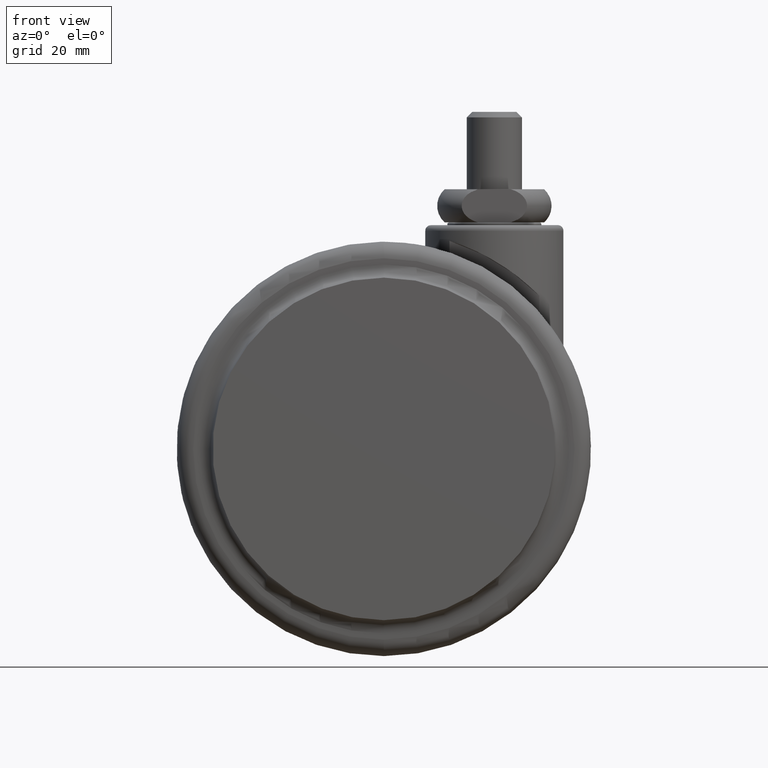
[diagram: clean part render]
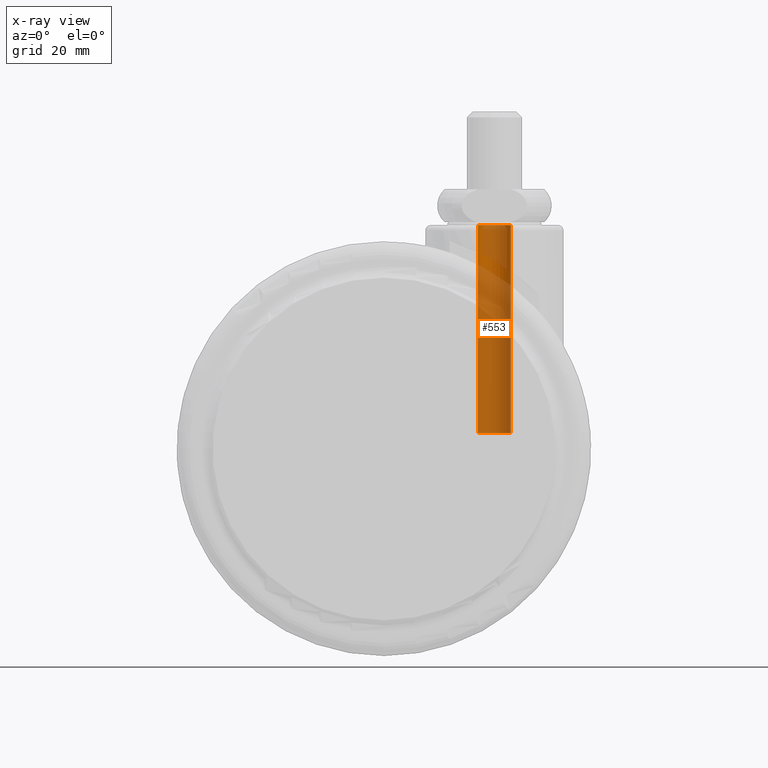
[diagram: x-ray — body ghosted, one internal face saturated and labeled with its STEP entity id]
A machine part, front view, then the same camera in x-ray: the body is ghosted and one INTERNAL B-rep face — a face not visible from any outside direction — is saturated and labeled: STEP entity #553.
In plain terms, the highlighted cylindrical surface (edge-blend (fillet) strip) has radius 3 mm, axis along (0, 0, 1).
Its self-contained STEP definition (entity closure, byte-faithful):
#128 = ORIENTED_EDGE ( 'NONE', *, *, #2611, .F. ) ;
#327 = DIRECTION ( 'NONE',  ( 0.0000000000000000000, 0.0000000000000000000, 1.000000000000000000 ) ) ;
#377 = CIRCLE ( 'NONE', #3787, 3.000000000000000000 ) ;
#475 = CARTESIAN_POINT ( 'NONE',  ( 0.0000000000000000000, 2.842170943040399500E-014, -37.61339081420354800 ) ) ;
#506 = EDGE_LOOP ( 'NONE', ( #3378, #128, #2441, #847 ) ) ;
#537 = CARTESIAN_POINT ( 'NONE',  ( 0.0000000000000000000, 2.842170943040399500E-014, 0.0000000000000000000 ) ) ;
#553 = ADVANCED_FACE ( 'NONE', ( #2684 ), #1775, .F. ) ;
#616 = CARTESIAN_POINT ( 'NONE',  ( 3.000000000000000000, 2.842170943040399500E-014, -37.61339081420354800 ) ) ;
#786 = DIRECTION ( 'NONE',  ( -1.000000000000000000, 0.0000000000000000000, 0.0000000000000000000 ) ) ;
#817 = AXIS2_PLACEMENT_3D ( 'NONE', #3780, #3185, #1951 ) ;
#847 = ORIENTED_EDGE ( 'NONE', *, *, #3469, .T. ) ;
#851 = DIRECTION ( 'NONE',  ( -1.000000000000000000, 0.0000000000000000000, 0.0000000000000000000 ) ) ;
#1083 = VERTEX_POINT ( 'NONE', #1563 ) ;
#1240 = CARTESIAN_POINT ( 'NONE',  ( 3.000000000000000000, 2.842170943040399500E-014, -1000.000000000000000 ) ) ;
#1462 = VECTOR ( 'NONE', #1978, 1000.000000000000000 ) ;
#1479 = CIRCLE ( 'NONE', #2494, 3.000000000000000000 ) ;
#1492 = VERTEX_POINT ( 'NONE', #2711 ) ;
#1563 = CARTESIAN_POINT ( 'NONE',  ( -3.000000000000000000, 2.878910347014820000E-014, 0.0000000000000000000 ) ) ;
#1638 = CARTESIAN_POINT ( 'NONE',  ( -3.000000000000000000, 2.878910347014820000E-014, -37.61339081420354800 ) ) ;
#1775 = CYLINDRICAL_SURFACE ( 'NONE', #817, 3.000000000000000000 ) ;
#1817 = VECTOR ( 'NONE', #327, 1000.000000000000000 ) ;
#1951 = DIRECTION ( 'NONE',  ( 1.000000000000000000, 0.0000000000000000000, 0.0000000000000000000 ) ) ;
#1978 = DIRECTION ( 'NONE',  ( 0.0000000000000000000, 0.0000000000000000000, 1.000000000000000000 ) ) ;
#1982 = VERTEX_POINT ( 'NONE', #1638 ) ;
#2039 = EDGE_CURVE ( 'NONE', #1982, #1083, #2292, .T. ) ;
#2182 = VERTEX_POINT ( 'NONE', #616 ) ;
#2292 = LINE ( 'NONE', #3807, #1462 ) ;
#2441 = ORIENTED_EDGE ( 'NONE', *, *, #3609, .T. ) ;
#2494 = AXIS2_PLACEMENT_3D ( 'NONE', #537, #2662, #851 ) ;
#2598 = DIRECTION ( 'NONE',  ( -0.0000000000000000000, -0.0000000000000000000, 1.000000000000000000 ) ) ;
#2611 = EDGE_CURVE ( 'NONE', #2182, #1982, #377, .T. ) ;
#2662 = DIRECTION ( 'NONE',  ( -0.0000000000000000000, -0.0000000000000000000, 1.000000000000000000 ) ) ;
#2684 = FACE_OUTER_BOUND ( 'NONE', #506, .T. ) ;
#2711 = CARTESIAN_POINT ( 'NONE',  ( 3.000000000000000000, 2.842170943040399500E-014, 0.0000000000000000000 ) ) ;
#3185 = DIRECTION ( 'NONE',  ( 0.0000000000000000000, 0.0000000000000000000, 1.000000000000000000 ) ) ;
#3378 = ORIENTED_EDGE ( 'NONE', *, *, #2039, .F. ) ;
#3460 = LINE ( 'NONE', #1240, #1817 ) ;
#3469 = EDGE_CURVE ( 'NONE', #1492, #1083, #1479, .T. ) ;
#3609 = EDGE_CURVE ( 'NONE', #2182, #1492, #3460, .T. ) ;
#3780 = CARTESIAN_POINT ( 'NONE',  ( 0.0000000000000000000, 2.842170943040399500E-014, -1000.000000000000000 ) ) ;
#3787 = AXIS2_PLACEMENT_3D ( 'NONE', #475, #2598, #786 ) ;
#3807 = CARTESIAN_POINT ( 'NONE',  ( -3.000000000000000000, 2.878910347014820000E-014, -1000.000000000000000 ) ) ;